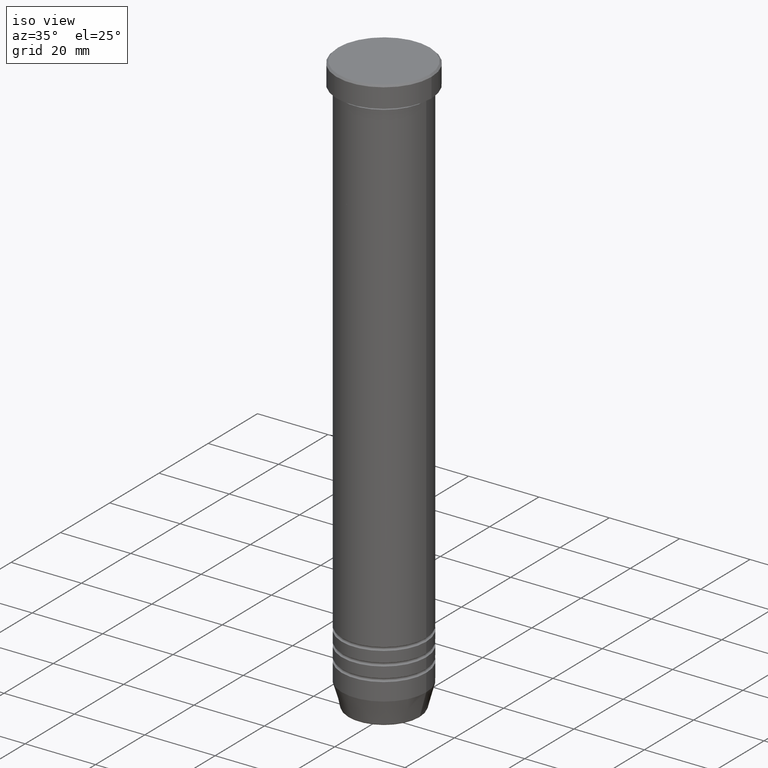
[diagram: clean part render]
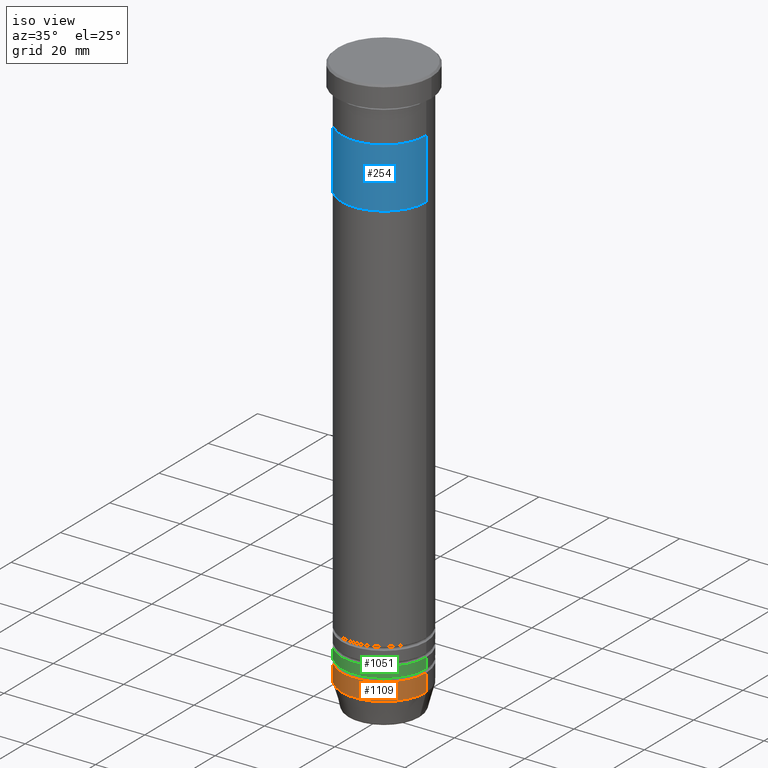
[diagram: same view with three faces highlighted in distinct colors, each labeled with its STEP entity id]
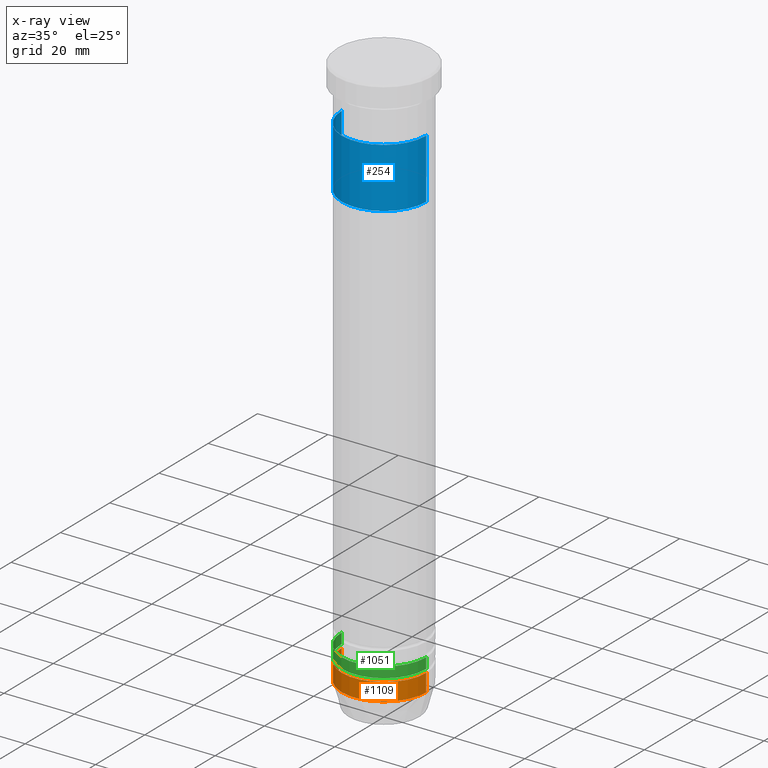
[diagram: x-ray of the same camera — body ghosted, the three highlighted faces saturated]
A machine part, iso view with three faces highlighted in distinct colors.
The next image is the same camera in x-ray (body ghosted, the three faces saturated) — at least one of them is partly hidden behind the body in this view.
Their STEP definitions:

[orange] entity #1109 — the highlighted cylindrical surface (partial cylindrical patch) has radius 12 mm, axis along (-0, -0, 1).
#3 = CARTESIAN_POINT ( 'NONE',  ( 0.000000000000000000, 0.000000000000000000, 0.000000000000000000 ) ) ;
#43 = CIRCLE ( 'NONE', #1045, 12.00000000000000178 ) ;
#51 = CARTESIAN_POINT ( 'NONE',  ( 0.000000000000000000, 0.000000000000000000, -159.0000000000000000 ) ) ;
#63 = ORIENTED_EDGE ( 'NONE', *, *, #101, .T. ) ;
#85 = CARTESIAN_POINT ( 'NONE',  ( 12.00000000000000178, 0.000000000000000000, -154.0000000000000284 ) ) ;
#92 = AXIS2_PLACEMENT_3D ( 'NONE', #3, #730, #1066 ) ;
#96 = CARTESIAN_POINT ( 'NONE',  ( -12.00000000000000178, 1.469576158976824144E-15, -154.0000000000000284 ) ) ;
#101 = EDGE_CURVE ( 'NONE', #180, #515, #865, .T. ) ;
#167 = AXIS2_PLACEMENT_3D ( 'NONE', #367, #824, #804 ) ;
#180 = VERTEX_POINT ( 'NONE', #1049 ) ;
#193 = CYLINDRICAL_SURFACE ( 'NONE', #92, 12.00000000000000178 ) ;
#367 = CARTESIAN_POINT ( 'NONE',  ( 0.000000000000000000, 0.000000000000000000, -154.0000000000000284 ) ) ;
#441 = EDGE_LOOP ( 'NONE', ( #1019, #743, #63, #750 ) ) ;
#489 = LINE ( 'NONE', #1099, #928 ) ;
#515 = VERTEX_POINT ( 'NONE', #85 ) ;
#563 = CARTESIAN_POINT ( 'NONE',  ( -12.00000000000000178, 1.469576158976824144E-15, -159.0000000000000000 ) ) ;
#583 = VECTOR ( 'NONE', #711, 1000.000000000000000 ) ;
#613 = EDGE_CURVE ( 'NONE', #1129, #180, #43, .T. ) ;
#694 = EDGE_CURVE ( 'NONE', #911, #515, #914, .T. ) ;
#701 = DIRECTION ( 'NONE',  ( -0.000000000000000000, -0.000000000000000000, 1.000000000000000000 ) ) ;
#711 = DIRECTION ( 'NONE',  ( -0.000000000000000000, -0.000000000000000000, 1.000000000000000000 ) ) ;
#730 = DIRECTION ( 'NONE',  ( -0.000000000000000000, -0.000000000000000000, 1.000000000000000000 ) ) ;
#743 = ORIENTED_EDGE ( 'NONE', *, *, #613, .T. ) ;
#750 = ORIENTED_EDGE ( 'NONE', *, *, #694, .F. ) ;
#804 = DIRECTION ( 'NONE',  ( 1.000000000000000000, 0.000000000000000000, 0.000000000000000000 ) ) ;
#824 = DIRECTION ( 'NONE',  ( -0.000000000000000000, -0.000000000000000000, 1.000000000000000000 ) ) ;
#865 = LINE ( 'NONE', #1135, #583 ) ;
#911 = VERTEX_POINT ( 'NONE', #96 ) ;
#914 = CIRCLE ( 'NONE', #167, 12.00000000000000178 ) ;
#915 = DIRECTION ( 'NONE',  ( -0.000000000000000000, -0.000000000000000000, 1.000000000000000000 ) ) ;
#928 = VECTOR ( 'NONE', #915, 1000.000000000000000 ) ;
#944 = DIRECTION ( 'NONE',  ( 1.000000000000000000, 0.000000000000000000, 0.000000000000000000 ) ) ;
#980 = FACE_OUTER_BOUND ( 'NONE', #441, .T. ) ;
#1019 = ORIENTED_EDGE ( 'NONE', *, *, #1132, .F. ) ;
#1045 = AXIS2_PLACEMENT_3D ( 'NONE', #51, #701, #944 ) ;
#1049 = CARTESIAN_POINT ( 'NONE',  ( 12.00000000000000178, 0.000000000000000000, -159.0000000000000000 ) ) ;
#1066 = DIRECTION ( 'NONE',  ( 1.000000000000000000, 0.000000000000000000, 0.000000000000000000 ) ) ;
#1099 = CARTESIAN_POINT ( 'NONE',  ( -12.00000000000000178, 1.469576158976824144E-15, 0.000000000000000000 ) ) ;
#1109 = ADVANCED_FACE ( 'NONE', ( #980 ), #193, .T. ) ;
#1129 = VERTEX_POINT ( 'NONE', #563 ) ;
#1132 = EDGE_CURVE ( 'NONE', #1129, #911, #489, .T. ) ;
#1135 = CARTESIAN_POINT ( 'NONE',  ( 12.00000000000000178, 0.000000000000000000, 0.000000000000000000 ) ) ;

[blue] entity #254 — the highlighted cylindrical surface (partial cylindrical patch) has radius 12 mm, axis along (-0, -0, 1).
#30 = VERTEX_POINT ( 'NONE', #374 ) ;
#71 = CARTESIAN_POINT ( 'NONE',  ( 0.000000000000000000, 0.000000000000000000, -33.00000000000000000 ) ) ;
#73 = DIRECTION ( 'NONE',  ( 0.000000000000000000, 0.000000000000000000, -1.000000000000000000 ) ) ;
#106 = LINE ( 'NONE', #473, #140 ) ;
#119 = CARTESIAN_POINT ( 'NONE',  ( -12.00000000000000178, 1.469576158976824144E-15, -33.00000000000000000 ) ) ;
#121 = EDGE_CURVE ( 'NONE', #691, #951, #300, .T. ) ;
#140 = VECTOR ( 'NONE', #287, 1000.000000000000000 ) ;
#160 = VERTEX_POINT ( 'NONE', #606 ) ;
#243 = DIRECTION ( 'NONE',  ( 0.000000000000000000, 0.000000000000000000, -1.000000000000000000 ) ) ;
#254 = ADVANCED_FACE ( 'NONE', ( #797 ), #457, .T. ) ;
#286 = DIRECTION ( 'NONE',  ( 1.000000000000000000, 0.000000000000000000, 0.000000000000000000 ) ) ;
#287 = DIRECTION ( 'NONE',  ( -0.000000000000000000, -0.000000000000000000, 1.000000000000000000 ) ) ;
#300 = CIRCLE ( 'NONE', #774, 12.00000000000000178 ) ;
#311 = AXIS2_PLACEMENT_3D ( 'NONE', #773, #73, #332 ) ;
#318 = AXIS2_PLACEMENT_3D ( 'NONE', #803, #726, #286 ) ;
#332 = DIRECTION ( 'NONE',  ( -1.000000000000000000, 0.000000000000000000, 0.000000000000000000 ) ) ;
#343 = DIRECTION ( 'NONE',  ( -1.000000000000000000, 0.000000000000000000, 0.000000000000000000 ) ) ;
#374 = CARTESIAN_POINT ( 'NONE',  ( -12.00000000000000178, 1.469576158976824144E-15, -16.00000000000000000 ) ) ;
#457 = CYLINDRICAL_SURFACE ( 'NONE', #318, 12.00000000000000178 ) ;
#463 = EDGE_LOOP ( 'NONE', ( #714, #736, #976, #861 ) ) ;
#469 = EDGE_CURVE ( 'NONE', #951, #30, #905, .T. ) ;
#470 = VECTOR ( 'NONE', #757, 1000.000000000000000 ) ;
#473 = CARTESIAN_POINT ( 'NONE',  ( 12.00000000000000178, 0.000000000000000000, -33.00000000000000000 ) ) ;
#497 = CIRCLE ( 'NONE', #311, 12.00000000000000178 ) ;
#606 = CARTESIAN_POINT ( 'NONE',  ( 12.00000000000000178, 0.000000000000000000, -16.00000000000000000 ) ) ;
#691 = VERTEX_POINT ( 'NONE', #1068 ) ;
#714 = ORIENTED_EDGE ( 'NONE', *, *, #469, .F. ) ;
#726 = DIRECTION ( 'NONE',  ( -0.000000000000000000, -0.000000000000000000, 1.000000000000000000 ) ) ;
#736 = ORIENTED_EDGE ( 'NONE', *, *, #121, .F. ) ;
#744 = EDGE_CURVE ( 'NONE', #691, #160, #106, .T. ) ;
#757 = DIRECTION ( 'NONE',  ( -0.000000000000000000, -0.000000000000000000, 1.000000000000000000 ) ) ;
#773 = CARTESIAN_POINT ( 'NONE',  ( 0.000000000000000000, 0.000000000000000000, -16.00000000000000000 ) ) ;
#774 = AXIS2_PLACEMENT_3D ( 'NONE', #71, #243, #343 ) ;
#797 = FACE_OUTER_BOUND ( 'NONE', #463, .T. ) ;
#803 = CARTESIAN_POINT ( 'NONE',  ( 0.000000000000000000, 0.000000000000000000, -33.00000000000000000 ) ) ;
#845 = CARTESIAN_POINT ( 'NONE',  ( -12.00000000000000178, 1.469576158976824144E-15, -33.00000000000000000 ) ) ;
#861 = ORIENTED_EDGE ( 'NONE', *, *, #1014, .T. ) ;
#905 = LINE ( 'NONE', #119, #470 ) ;
#951 = VERTEX_POINT ( 'NONE', #845 ) ;
#976 = ORIENTED_EDGE ( 'NONE', *, *, #744, .T. ) ;
#1014 = EDGE_CURVE ( 'NONE', #160, #30, #497, .T. ) ;
#1068 = CARTESIAN_POINT ( 'NONE',  ( 12.00000000000000178, 0.000000000000000000, -33.00000000000000000 ) ) ;

[green] entity #1051 — the highlighted cylindrical surface (partial cylindrical patch) has radius 12 mm, axis along (-0, -0, 1).
#20 = ORIENTED_EDGE ( 'NONE', *, *, #990, .F. ) ;
#46 = VECTOR ( 'NONE', #134, 1000.000000000000000 ) ;
#84 = VERTEX_POINT ( 'NONE', #514 ) ;
#99 = ORIENTED_EDGE ( 'NONE', *, *, #935, .T. ) ;
#111 = DIRECTION ( 'NONE',  ( -0.000000000000000000, -0.000000000000000000, 1.000000000000000000 ) ) ;
#134 = DIRECTION ( 'NONE',  ( -0.000000000000000000, -0.000000000000000000, 1.000000000000000000 ) ) ;
#149 = DIRECTION ( 'NONE',  ( -0.000000000000000000, -0.000000000000000000, 1.000000000000000000 ) ) ;
#249 = ORIENTED_EDGE ( 'NONE', *, *, #1035, .F. ) ;
#297 = FACE_OUTER_BOUND ( 'NONE', #455, .T. ) ;
#307 = VERTEX_POINT ( 'NONE', #1000 ) ;
#312 = AXIS2_PLACEMENT_3D ( 'NONE', #659, #111, #819 ) ;
#317 = LINE ( 'NONE', #586, #46 ) ;
#337 = VERTEX_POINT ( 'NONE', #1120 ) ;
#455 = EDGE_LOOP ( 'NONE', ( #20, #99, #1071, #249 ) ) ;
#481 = VERTEX_POINT ( 'NONE', #579 ) ;
#514 = CARTESIAN_POINT ( 'NONE',  ( -11.99999999999999467, 1.469576158976823553E-15, -153.0000000000000284 ) ) ;
#518 = AXIS2_PLACEMENT_3D ( 'NONE', #684, #149, #617 ) ;
#519 = CARTESIAN_POINT ( 'NONE',  ( -11.99999999999999822, 1.469576158976823750E-15, 0.000000000000000000 ) ) ;
#579 = CARTESIAN_POINT ( 'NONE',  ( 11.99999999999999467, 0.000000000000000000, -153.0000000000000284 ) ) ;
#586 = CARTESIAN_POINT ( 'NONE',  ( 11.99999999999999822, 0.000000000000000000, 0.000000000000000000 ) ) ;
#617 = DIRECTION ( 'NONE',  ( 1.000000000000000000, 0.000000000000000000, 0.000000000000000000 ) ) ;
#654 = CIRCLE ( 'NONE', #753, 12.00000000000000178 ) ;
#659 = CARTESIAN_POINT ( 'NONE',  ( 0.000000000000000000, 0.000000000000000000, 0.000000000000000000 ) ) ;
#671 = VECTOR ( 'NONE', #1016, 1000.000000000000000 ) ;
#684 = CARTESIAN_POINT ( 'NONE',  ( 0.000000000000000000, 0.000000000000000000, -153.0000000000000284 ) ) ;
#718 = CIRCLE ( 'NONE', #518, 11.99999999999999467 ) ;
#753 = AXIS2_PLACEMENT_3D ( 'NONE', #807, #796, #1073 ) ;
#789 = EDGE_CURVE ( 'NONE', #481, #337, #317, .T. ) ;
#796 = DIRECTION ( 'NONE',  ( -0.000000000000000000, -0.000000000000000000, 1.000000000000000000 ) ) ;
#801 = CYLINDRICAL_SURFACE ( 'NONE', #312, 11.99999999999999822 ) ;
#807 = CARTESIAN_POINT ( 'NONE',  ( 0.000000000000000000, 0.000000000000000000, -150.0000000000000284 ) ) ;
#819 = DIRECTION ( 'NONE',  ( 1.000000000000000000, 0.000000000000000000, 0.000000000000000000 ) ) ;
#935 = EDGE_CURVE ( 'NONE', #84, #481, #718, .T. ) ;
#990 = EDGE_CURVE ( 'NONE', #84, #307, #1130, .T. ) ;
#1000 = CARTESIAN_POINT ( 'NONE',  ( -12.00000000000000178, 1.469576158976824144E-15, -150.0000000000000284 ) ) ;
#1016 = DIRECTION ( 'NONE',  ( -0.000000000000000000, -0.000000000000000000, 1.000000000000000000 ) ) ;
#1035 = EDGE_CURVE ( 'NONE', #307, #337, #654, .T. ) ;
#1051 = ADVANCED_FACE ( 'NONE', ( #297 ), #801, .T. ) ;
#1071 = ORIENTED_EDGE ( 'NONE', *, *, #789, .T. ) ;
#1073 = DIRECTION ( 'NONE',  ( 1.000000000000000000, 0.000000000000000000, 0.000000000000000000 ) ) ;
#1120 = CARTESIAN_POINT ( 'NONE',  ( 12.00000000000000178, 0.000000000000000000, -150.0000000000000284 ) ) ;
#1130 = LINE ( 'NONE', #519, #671 ) ;